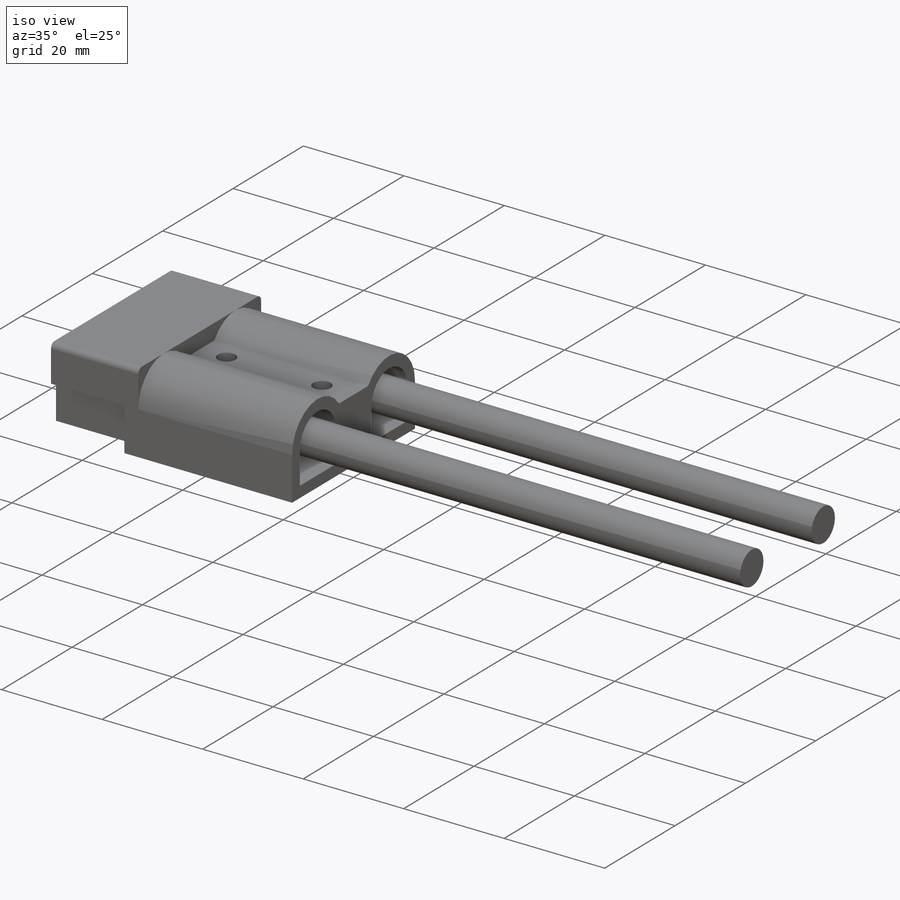
[diagram: iso view]
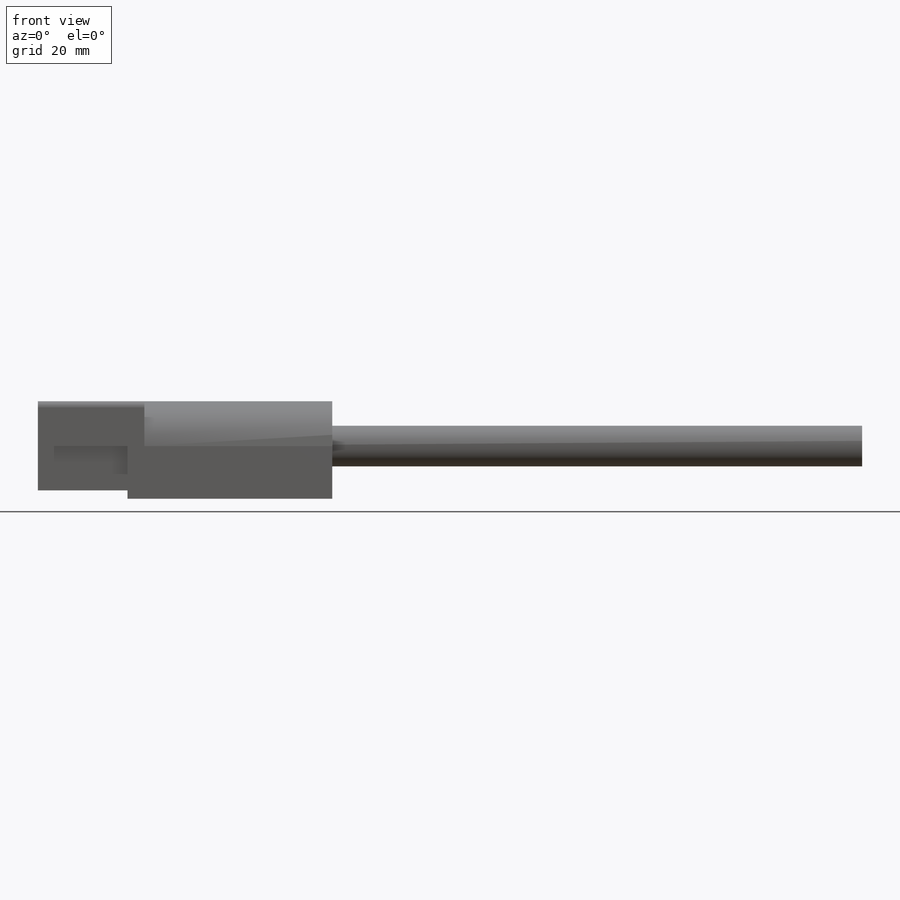
[diagram: front view]
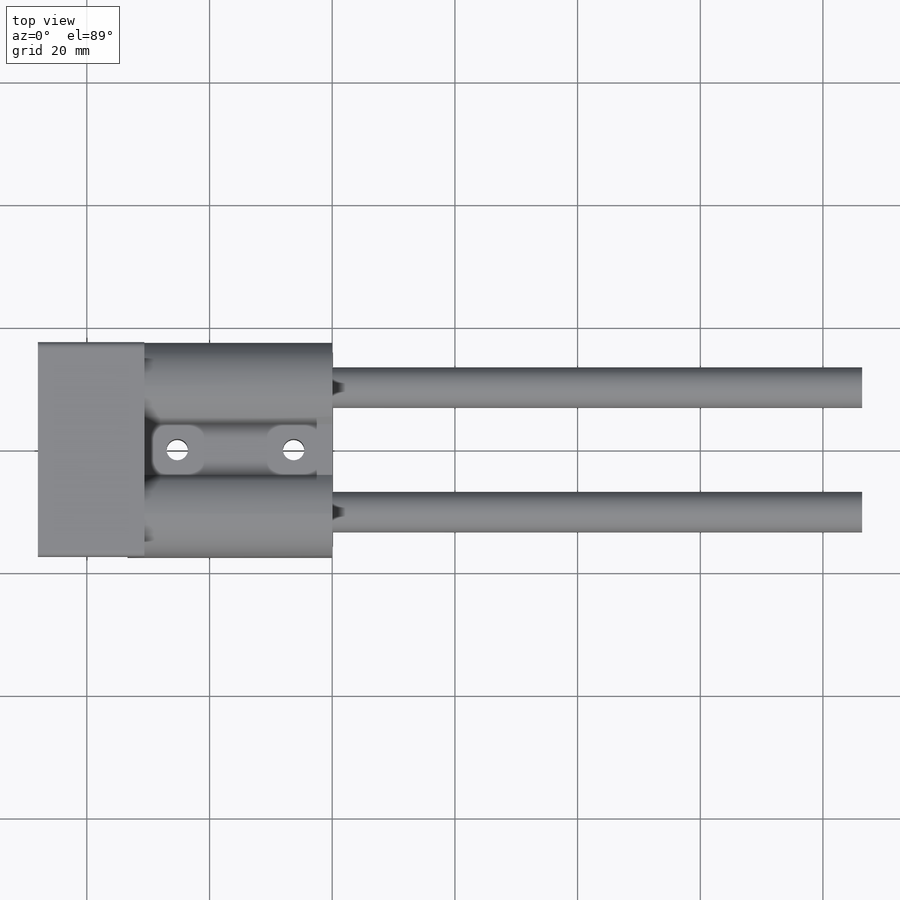
[diagram: top view]
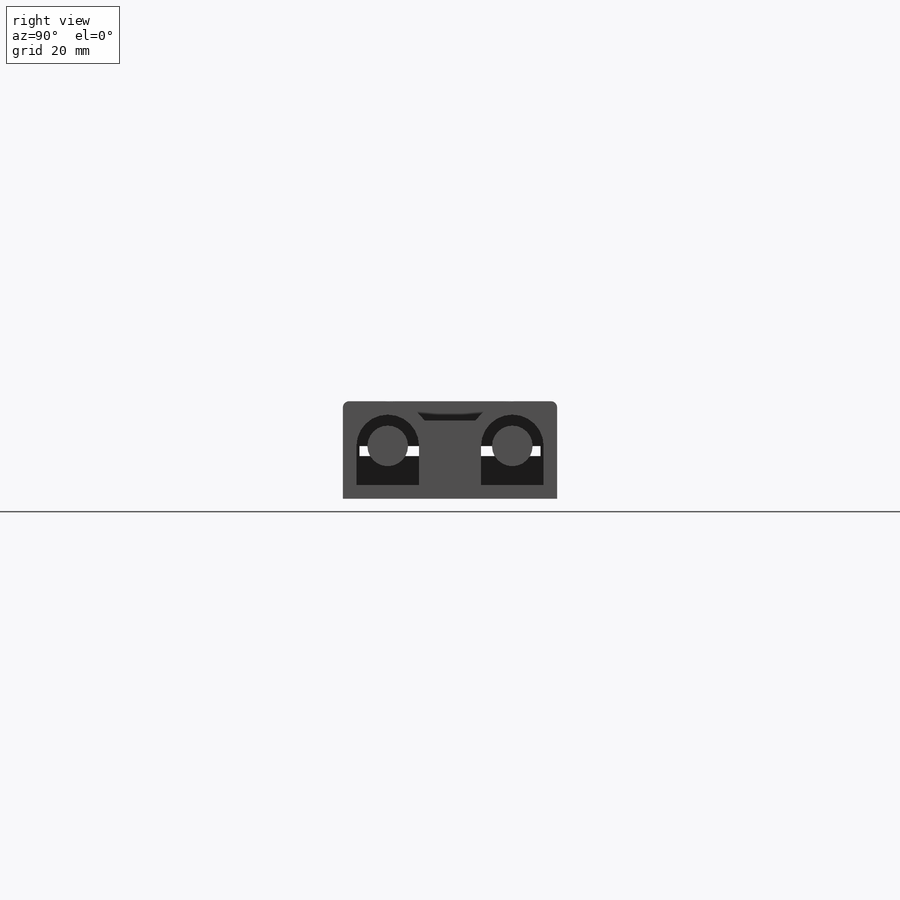
[diagram: right view]
SOLIDWORKS PART (.sldprt)
format: sldprt  version: not decoded by parser v0  size: 333,312 bytes
history: native  units: mm
features: sketch x6, extrude x5, material x1, plane x1, fillet x1, pattern_linear x1 (+12 scaffold rows collapsed)
feature tree (27):
  scaffold x12  (default folders/planes/origin — collapsed)
  material  "PVB"
  sketch  "Sketch1"  dims[c1.D1=7.31mm c1.D2=~4.144135mm c1.D3=17.465mm c1.D4=~4.144135mm c1.D5=10.155mm c1.D6=17.465mm c2.D5=10.155mm c2.D6=0.64mm c2.D7=4.8mm c2.D8=7.95mm c3.D6=0.64mm c3.D2=34.93mm c3.D3=8.59mm c3.D4=~8.28827mm c3.D5=2.2mm c4.D6=2.21mm]
  extrude  "Extrude1"  Depth=30.62mm
  sketch  "Sketch2"  dims[D1=15.9mm D2=15.9mm D3=34.93mm D4=6.39mm D5=10.2mm D6=10.2mm D7=6.39mm D8=2.2mm D9=2.21mm]
  extrude  "Extrude2"  Depth=2.76mm
  plane  "Plane1"  Offset=0.76mm
  sketch  "Sketch3"  dims[c1.D1=1.0mm c1.D2=3.07mm c1.D3=3.645mm c1.D4=4.69mm c1.D5=16.465mm c1.D6=3.07mm c1.D7=3.645mm c1.D8=4.69mm c1.D9=14.755mm c1.D10=16.045mm c1.D11=17.465mm c2.D5=16.465mm c2.D11=~1.200053mm c2.D12=~6.490053mm c2.D13=~6.740053mm c2.D14=~8.420053mm c2.D15=~10.360053mm c2.D16=~14.310053mm c2.D17=~15.730053mm c2.D1=12.4mm c2.D2=7.22mm c2.D3=5.29mm c2.D4=7.29mm c3.D5=10.065mm c3.D6=1.42mm c3.D7=1.29mm c3.D8=1.68mm c3.D9=3.95mm c3.D10=5.89mm c3.D11=6.14mm c3.D12=1.42mm c3.D13=34.93mm c3.D14=12.975mm c4.D5=4.69mm c4.D6=4.69mm c5.D5=9.38mm]
  extrude  "Extrude3"  Depth=15.36mm
  extrude  "Extrude4"  [1 undecoded]
  sketch  "Sketch"  dims[D1=15.36mm]
  fillet  "Fillet1"  Radius=1mm
  sketch  "Sketch4"  dims[D1=6.62mm]
  extrude  "Extrude5"  Depth=117mm
  sketch  "Sketch5"  dims[D1=3.51mm D2=6.29mm]
  pattern_linear  "LPattern1"  Count1=2 Count2=1 Spacing1=18.97mm Spacing2=10mm
decode coverage: 12 of 13 modeling features carry decoded parameters
note: ~ marks probable driven/reference dimensions
note: 1 parameter value undecoded
note: suppression state not decoded; provenance and decode notes live in map.json
